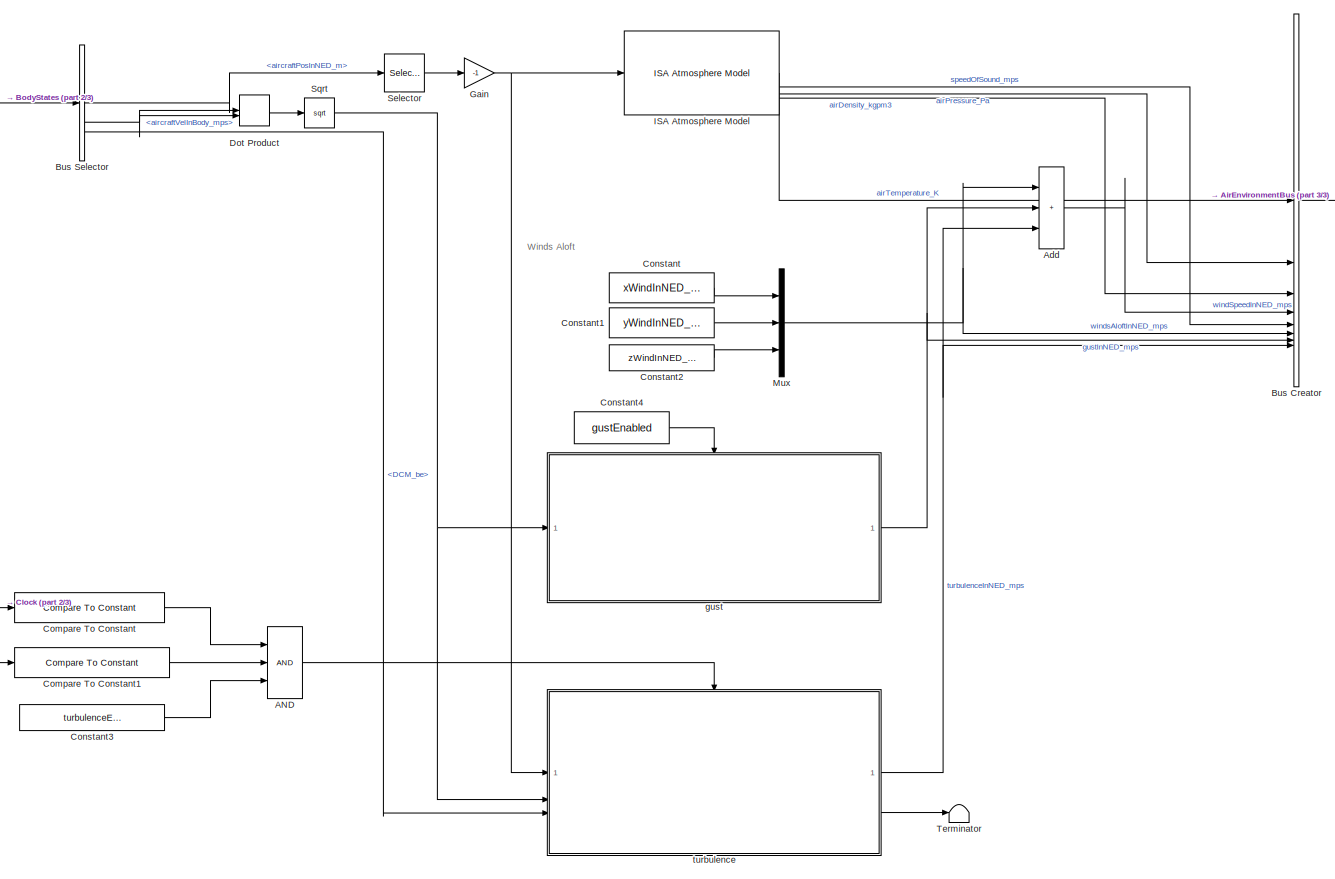
[diagram: root canvas - part 1/3, most of the canvas]
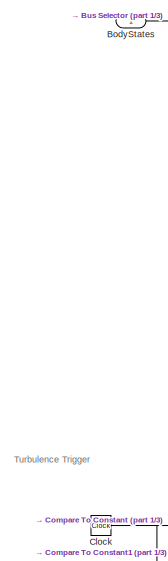
[diagram: root canvas - part 2/3, middle left region]
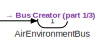
[diagram: root canvas - part 3/3, top right region]
MODEL slx_e642673e2a79
KIND model
BLOCK [Logic] AND
  AllPortsSameDT = off
  IconShape = distinctive
  Inputs = 3
  OutDataTypeStr = boolean
BLOCK [Sum] Add
  IconShape = rectangular
  Inputs = +++
BLOCK [Outport] AirEnvironmentBus
  OutDataTypeStr = Bus: AirEnvironmentBus
BLOCK [Inport] BodyStates
  OutDataTypeStr = Bus: BodyStateBus
BLOCK [BusCreator] Bus Creator
  DisplayOption = bar
  InheritFromInputs = on
  Inputs = 8
  OutDataTypeStr = Bus: AirEnvironmentBus
BLOCK [BusSelector] Bus Selector
  OutputSignals = aircraftPosInNED_m,aircraftVelInBody_mps,DCM_be
BLOCK [Clock] Clock
BLOCK [Reference] Compare To Constant  REF=simulink/Logic and Bit
Operations/Compare
To Constant
  SourceBlock = simulink/Logic and Bit\nOperations/Compare\nTo Constant
  SourceType = Compare To Constant
BLOCK [Reference] Compare To Constant1  REF=simulink/Logic and Bit
Operations/Compare
To Constant
  SourceBlock = simulink/Logic and Bit\nOperations/Compare\nTo Constant
  SourceType = Compare To Constant
BLOCK [Constant] Constant
  Value = xWindInNED_mps
BLOCK [Constant] Constant1
  Value = yWindInNED_mps
BLOCK [Constant] Constant2
  Value = zWindInNED_mps
BLOCK [Constant] Constant3
  Value = turbulenceEnabled
BLOCK [Constant] Constant4
  Value = gustEnabled
BLOCK [DotProduct] Dot Product
  OutDataTypeStr = Inherit: Inherit via internal rule
BLOCK [Gain] Gain
  Gain = -1
BLOCK [Reference] ISA Atmosphere Model  REF=aerolibatmos2/ISA Atmosphere Model
  SourceBlock = aerolibatmos2/ISA Atmosphere Model
  SourceType = International Standard Atmosphere Model
BLOCK [Mux] Mux
  DisplayOption = bar
  Inputs = 3
BLOCK [Selector] Selector
  IndexOptions = Index vector (dialog)
  Indices = 3
  InputPortWidth = 3
  OutputSizes = 1
BLOCK [Sqrt] Sqrt
BLOCK [Terminator] Terminator
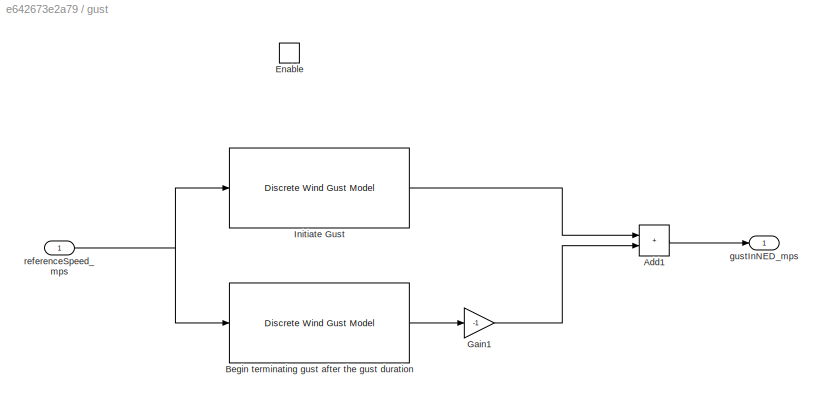
BLOCK [SubSystem] gust
BLOCK [Sum] gust/Add1
  IconShape = rectangular
BLOCK [Reference] gust/Begin terminating gust after the gust duration  REF=aerolibwind2/Discrete Wind Gust Model
  SourceBlock = aerolibwind2/Discrete Wind Gust Model
  SourceType = Discrete Wind Gust Model
BLOCK [EnablePort] gust/Enable
BLOCK [Gain] gust/Gain1
  Gain = -1
BLOCK [Reference] gust/Initiate Gust  REF=aerolibwind2/Discrete Wind Gust Model
  SourceBlock = aerolibwind2/Discrete Wind Gust Model
  SourceType = Discrete Wind Gust Model
BLOCK [Outport] gust/gustInNED_mps
BLOCK [Inport] gust/referenceSpeed_mps
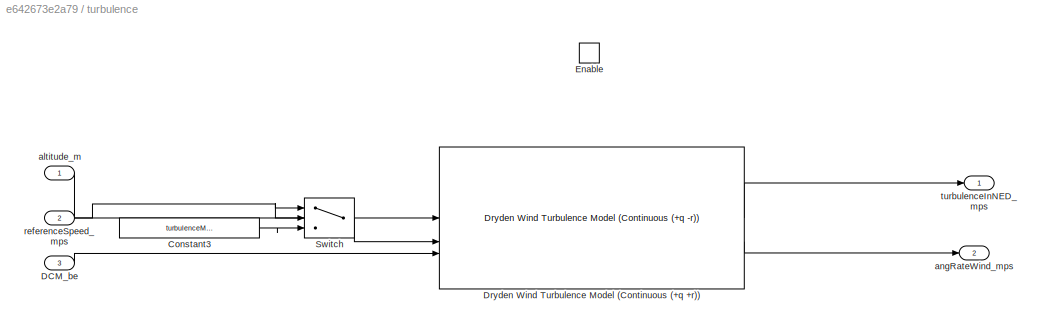
BLOCK [SubSystem] turbulence
BLOCK [Constant] turbulence/Constant3
  Value = turbulenceMinAirspeed_mps
BLOCK [Inport] turbulence/DCM_be
  Port = 3
BLOCK [Reference] turbulence/Dryden Wind Turbulence Model (Continuous (+q +r))  REF=aerolibwind2/Dryden Wind Turbulence Model 
(Continuous (+q -r))
  LibrarySourceBlock = aerolibwind2/Dryden Wind Turbulence Model \n(Continuous (+q +r))
  SourceBlock = aerolibwind2/Dryden Wind Turbulence Model \n(Continuous (+q -r))
  SourceType = Wind Turbulence Model
BLOCK [EnablePort] turbulence/Enable
BLOCK [Switch] turbulence/Switch
  Criteria = u2 > Threshold
  InputSameDT = off
  SaturateOnIntegerOverflow = off
  Threshold = 1
BLOCK [Inport] turbulence/altitude_m
BLOCK [Outport] turbulence/angRateWind_mps
  Port = 2
BLOCK [Inport] turbulence/referenceSpeed_mps
  Port = 2
BLOCK [Outport] turbulence/turbulenceInNED_mps
ANNOTATION (root): Turbulence Trigger
ANNOTATION (root): Winds Aloft
LINE AND:1 -> turbulence:enable
LINE Add:1 -> Bus Creator:4
LINE BodyStates:1 -> Bus Selector:1
LINE Bus Creator:1 -> AirEnvironmentBus:1
LINE Bus Selector:1 -> Selector:1
NET Bus Selector:2 -> Dot Product:1, Dot Product:2
LINE Bus Selector:3 -> turbulence:3
NET Clock:1 -> Compare To Constant1:1, Compare To Constant:1
LINE Compare To Constant1:1 -> AND:2
LINE Compare To Constant:1 -> AND:1
LINE Constant1:1 -> Mux:2
LINE Constant2:1 -> Mux:3
LINE Constant3:1 -> AND:3
LINE Constant4:1 -> gust:enable
LINE Constant:1 -> Mux:1
LINE Dot Product:1 -> Sqrt:1
NET Gain:1 -> ISA Atmosphere Model:1, turbulence:1
LINE ISA Atmosphere Model:1 -> Bus Creator:1
LINE ISA Atmosphere Model:2 -> Bus Creator:5
LINE ISA Atmosphere Model:3 -> Bus Creator:2
LINE ISA Atmosphere Model:4 -> Bus Creator:3
NET Mux:1 -> Add:1, Bus Creator:6
LINE Selector:1 -> Gain:1
NET Sqrt:1 -> gust:1, turbulence:2
LINE gust/Add1:1 -> gust/gustInNED_mps:1
LINE gust/Begin terminating gust after the gust duration:1 -> gust/Gain1:1
LINE gust/Gain1:1 -> gust/Add1:2
LINE gust/Initiate Gust:1 -> gust/Add1:1
NET gust/referenceSpeed_mps:1 -> gust/Begin terminating gust after the gust duration:1, gust/Initiate Gust:1
NET gust:1 -> Add:2, Bus Creator:7
LINE turbulence/Constant3:1 -> turbulence/Switch:3
LINE turbulence/DCM_be:1 -> turbulence/Dryden Wind Turbulence Model (Continuous (+q +r)):3
LINE turbulence/Dryden Wind Turbulence Model (Continuous (+q +r)):1 -> turbulence/turbulenceInNED_mps:1
LINE turbulence/Dryden Wind Turbulence Model (Continuous (+q +r)):2 -> turbulence/angRateWind_mps:1
LINE turbulence/Switch:1 -> turbulence/Dryden Wind Turbulence Model (Continuous (+q +r)):2
LINE turbulence/altitude_m:1 -> turbulence/Dryden Wind Turbulence Model (Continuous (+q +r)):1
NET turbulence/referenceSpeed_mps:1 -> turbulence/Switch:1, turbulence/Switch:2
NET turbulence:1 -> Add:3, Bus Creator:8
LINE turbulence:2 -> Terminator:1
note: NET lines group one-source signal fan-out (src -> all destinations, sorted); 1:1 wires keep LINE
